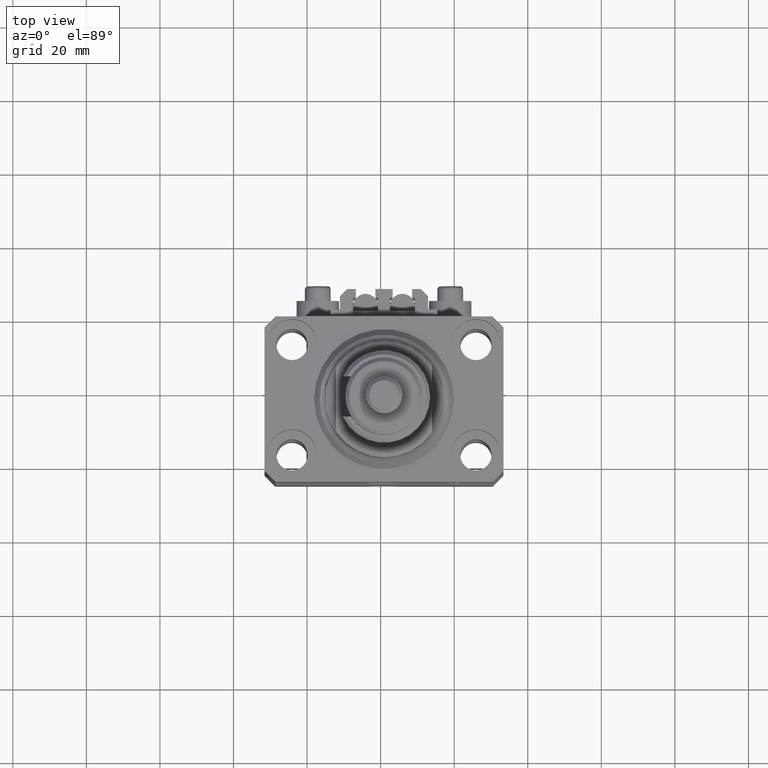
[diagram: clean part render]
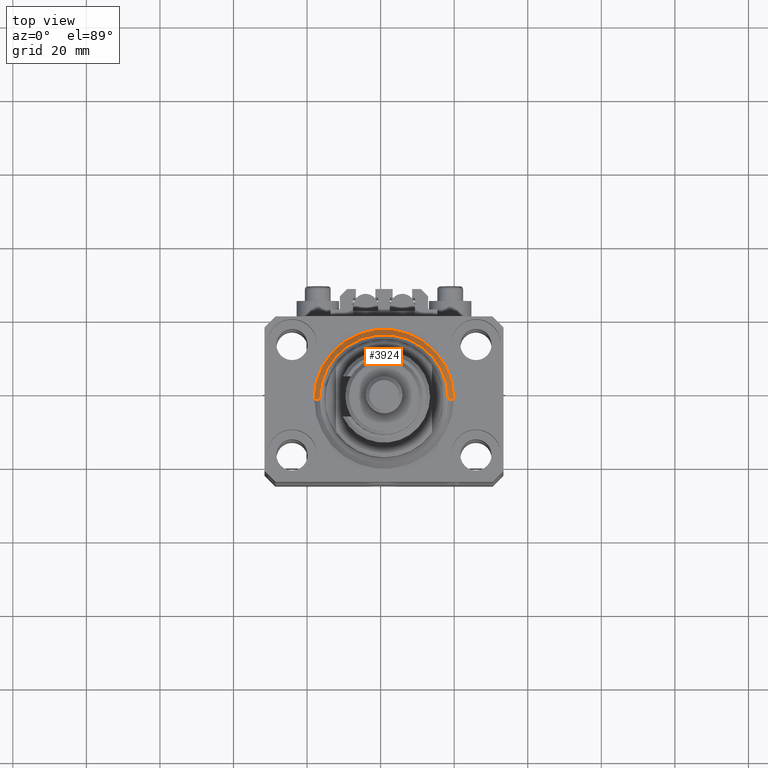
[diagram: same view with one face highlighted and labeled with its STEP entity id]
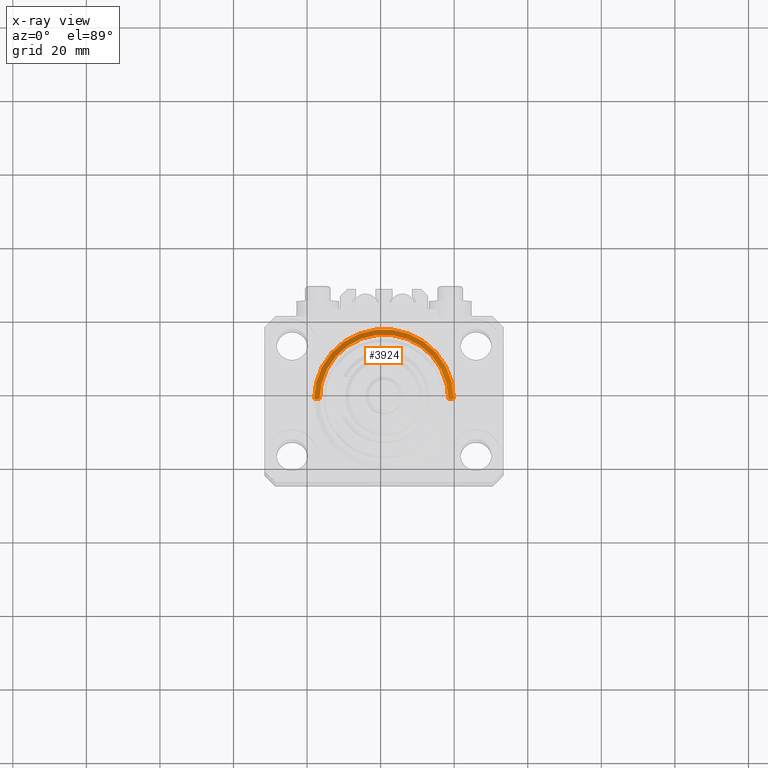
[diagram: x-ray of the same camera — body ghosted, the highlighted face saturated]
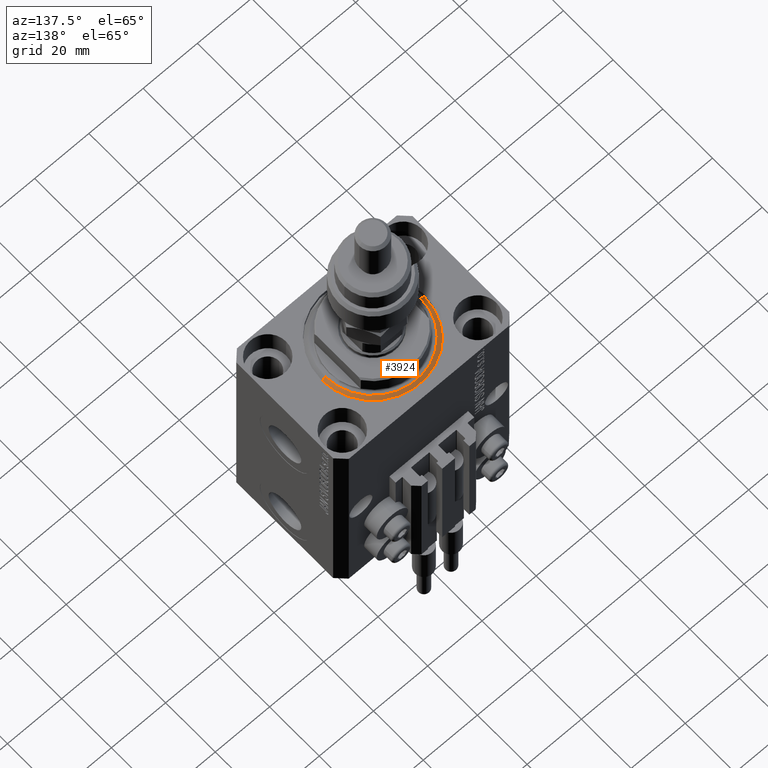
[diagram: same view with one face highlighted and labeled with its STEP entity id]
A machine part, top view. The second image highlights one B-rep face of the part: STEP entity #3924.
The next image is the same camera in x-ray: the body ghosted, the highlighted face saturated — about 0% of this face is hidden behind the body in this view.
A second angle (auxiliary view) of the same face is appended — the face is thin or edge-on in the first view.
In plain terms, the highlighted conical surface has half-angle 45 deg.
Its self-contained STEP definition (entity closure, byte-faithful):
#751 = ORIENTED_EDGE ( 'NONE', *, *, #16700, .F. ) ;
#3924 = ADVANCED_FACE ( 'NONE', ( #47206 ), #7770, .T. ) ;
#4351 = DIRECTION ( 'NONE',  ( 0.7071067811865483499, 0.000000000000000000, 0.7071067811865467956 ) ) ;
#4957 = CARTESIAN_POINT ( 'NONE',  ( -19.00000000000000000, 0.000000000000000000, 1.500000000000004885 ) ) ;
#5878 = DIRECTION ( 'NONE',  ( -0.7071067811865483499, 8.659560562354943952E-17, 0.7071067811865467956 ) ) ;
#5880 = DIRECTION ( 'NONE',  ( -0.000000000000000000, -0.000000000000000000, -1.000000000000000000 ) ) ;
#7770 = CONICAL_SURFACE ( 'NONE', #14331, 19.00000000000000000, 0.7853981633974492782 ) ;
#8712 = CARTESIAN_POINT ( 'NONE',  ( 19.00000000000000000, 0.000000000000000000, 1.500000000000004885 ) ) ;
#9371 = VECTOR ( 'NONE', #4351, 1000.000000000000000 ) ;
#10022 = CIRCLE ( 'NONE', #33034, 17.49999999999999289 ) ;
#11596 = VECTOR ( 'NONE', #5878, 1000.000000000000000 ) ;
#12671 = VERTEX_POINT ( 'NONE', #32663 ) ;
#14331 = AXIS2_PLACEMENT_3D ( 'NONE', #35621, #15603, #23827 ) ;
#14695 = DIRECTION ( 'NONE',  ( 1.000000000000000000, 0.000000000000000000, 0.000000000000000000 ) ) ;
#14803 = CARTESIAN_POINT ( 'NONE',  ( -17.49999999999999289, 2.234980408443919215E-15, 0.000000000000000000 ) ) ;
#15603 = DIRECTION ( 'NONE',  ( -0.000000000000000000, -0.000000000000000000, 1.000000000000000000 ) ) ;
#16700 = EDGE_CURVE ( 'NONE', #35330, #37918, #45871, .T. ) ;
#17202 = LINE ( 'NONE', #21062, #11596 ) ;
#19754 = EDGE_LOOP ( 'NONE', ( #46649, #25531, #751, #48232 ) ) ;
#21062 = CARTESIAN_POINT ( 'NONE',  ( -19.00000000000000000, 2.326828918379970970E-15, 1.500000000000004885 ) ) ;
#23827 = DIRECTION ( 'NONE',  ( 1.000000000000000000, 0.000000000000000000, 0.000000000000000000 ) ) ;
#25531 = ORIENTED_EDGE ( 'NONE', *, *, #26760, .T. ) ;
#26646 = CARTESIAN_POINT ( 'NONE',  ( 19.00000000000000000, 2.326828918379970970E-15, 1.500000000000004885 ) ) ;
#26760 = EDGE_CURVE ( 'NONE', #47251, #37918, #17202, .T. ) ;
#31586 = LINE ( 'NONE', #8712, #9371 ) ;
#32663 = CARTESIAN_POINT ( 'NONE',  ( 17.49999999999999289, 0.000000000000000000, 0.000000000000000000 ) ) ;
#33034 = AXIS2_PLACEMENT_3D ( 'NONE', #48802, #5880, #40848 ) ;
#35330 = VERTEX_POINT ( 'NONE', #26646 ) ;
#35621 = CARTESIAN_POINT ( 'NONE',  ( 0.000000000000000000, 0.000000000000000000, 1.500000000000004885 ) ) ;
#37918 = VERTEX_POINT ( 'NONE', #4957 ) ;
#40848 = DIRECTION ( 'NONE',  ( 1.000000000000000000, 0.000000000000000000, 0.000000000000000000 ) ) ;
#41872 = EDGE_CURVE ( 'NONE', #47251, #12671, #10022, .T. ) ;
#45789 = CARTESIAN_POINT ( 'NONE',  ( 0.000000000000000000, 0.000000000000000000, 1.500000000000004885 ) ) ;
#45871 = CIRCLE ( 'NONE', #49177, 19.00000000000000000 ) ;
#46649 = ORIENTED_EDGE ( 'NONE', *, *, #41872, .F. ) ;
#47206 = FACE_OUTER_BOUND ( 'NONE', #19754, .T. ) ;
#47251 = VERTEX_POINT ( 'NONE', #14803 ) ;
#48232 = ORIENTED_EDGE ( 'NONE', *, *, #49043, .F. ) ;
#48802 = CARTESIAN_POINT ( 'NONE',  ( 0.000000000000000000, 0.000000000000000000, 0.000000000000000000 ) ) ;
#49043 = EDGE_CURVE ( 'NONE', #12671, #35330, #31586, .T. ) ;
#49177 = AXIS2_PLACEMENT_3D ( 'NONE', #45789, #50168, #14695 ) ;
#50168 = DIRECTION ( 'NONE',  ( -0.000000000000000000, -0.000000000000000000, 1.000000000000000000 ) ) ;